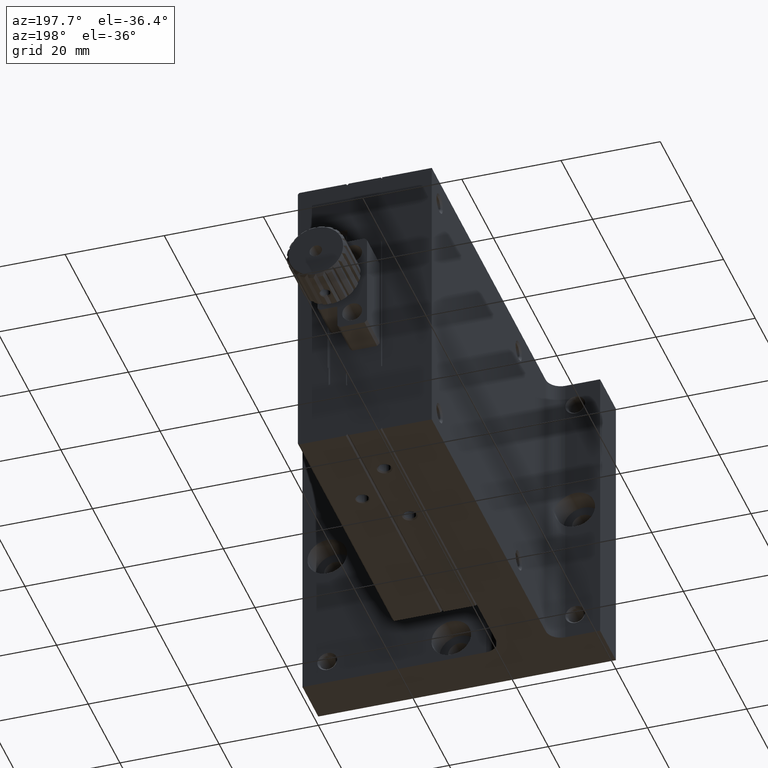
[diagram: clean part render]
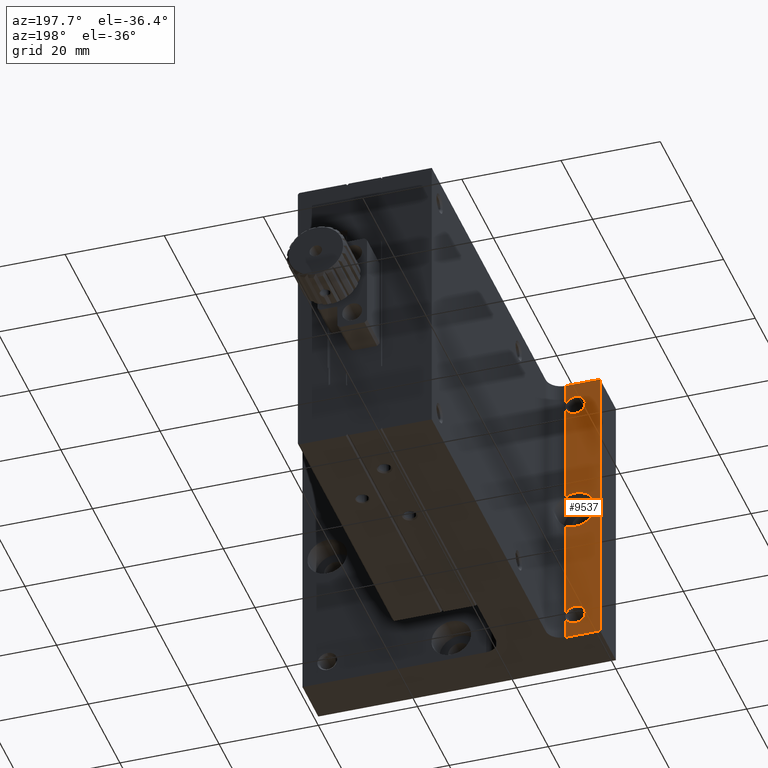
[diagram: same view with one face highlighted and labeled with its STEP entity id]
A machine part, auxiliary view. The second image highlights one B-rep face of the part: STEP entity #9537.
In plain terms, the highlighted planar face has unit normal (0, 1, 0).
Its self-contained STEP definition (entity closure, byte-faithful):
#198 = EDGE_CURVE ( 'NONE', #10607, #8321, #9887, .T. ) ;
#200 = FACE_BOUND ( 'NONE', #4552, .T. ) ;
#421 = DIRECTION ( 'NONE',  ( 0.000000000000000000, -0.000000000000000000, 1.000000000000000000 ) ) ;
#425 = DIRECTION ( 'NONE',  ( -0.000000000000000000, 0.000000000000000000, -1.000000000000000000 ) ) ;
#563 = ORIENTED_EDGE ( 'NONE', *, *, #4855, .T. ) ;
#577 = AXIS2_PLACEMENT_3D ( 'NONE', #10157, #6789, #9987 ) ;
#789 = CARTESIAN_POINT ( 'NONE',  ( 5.000000000000000000, 10.00000000000000000, -30.00000000000000000 ) ) ;
#977 = CARTESIAN_POINT ( 'NONE',  ( 5.000000000000000000, 9.999999999990905053, -2.999999999985902832 ) ) ;
#1234 = CARTESIAN_POINT ( 'NONE',  ( 7.000000000000000000, 10.00000000000000000, -60.00000000000000000 ) ) ;
#1295 = CARTESIAN_POINT ( 'NONE',  ( 6.999999999999988454, 9.999999999999994671, -33.46410161513775705 ) ) ;
#1332 = DIRECTION ( 'NONE',  ( -1.000000000000000000, -0.000000000000000000, 0.000000000000000000 ) ) ;
#1356 = VECTOR ( 'NONE', #3973, 1000.000000000000000 ) ;
#1560 = DIRECTION ( 'NONE',  ( 0.000000000000000000, 0.000000000000000000, -1.000000000000000000 ) ) ;
#1757 = LINE ( 'NONE', #6689, #3287 ) ;
#1937 = VERTEX_POINT ( 'NONE', #6447 ) ;
#2025 = AXIS2_PLACEMENT_3D ( 'NONE', #9100, #7409, #4968 ) ;
#2041 = ORIENTED_EDGE ( 'NONE', *, *, #4801, .T. ) ;
#2042 = PLANE ( 'NONE',  #8836 ) ;
#2052 = ORIENTED_EDGE ( 'NONE', *, *, #5712, .T. ) ;
#2260 = EDGE_CURVE ( 'NONE', #9905, #8321, #2913, .T. ) ;
#2378 = CIRCLE ( 'NONE', #2025, 2.000000000014097168 ) ;
#2467 = DIRECTION ( 'NONE',  ( -1.000000000000000000, -0.000000000000000000, 0.000000000000000000 ) ) ;
#2913 = LINE ( 'NONE', #3951, #3872 ) ;
#3059 = EDGE_CURVE ( 'NONE', #5705, #5705, #7338, .T. ) ;
#3287 = VECTOR ( 'NONE', #2467, 1000.000000000000000 ) ;
#3708 = ORIENTED_EDGE ( 'NONE', *, *, #8837, .T. ) ;
#3872 = VECTOR ( 'NONE', #1332, 1000.000000000000000 ) ;
#3951 = CARTESIAN_POINT ( 'NONE',  ( 23.00000000000000000, 10.00000000000000000, 0.000000000000000000 ) ) ;
#3973 = DIRECTION ( 'NONE',  ( -0.000000000000000000, 0.000000000000000000, -1.000000000000000000 ) ) ;
#4019 = DIRECTION ( 'NONE',  ( 0.000000000000000000, -1.000000000000000000, 0.000000000000000000 ) ) ;
#4116 = AXIS2_PLACEMENT_3D ( 'NONE', #789, #4019, #1560 ) ;
#4259 = EDGE_LOOP ( 'NONE', ( #10122 ) ) ;
#4378 = CARTESIAN_POINT ( 'NONE',  ( 6.999999999999995559, 10.00000000000000000, 0.000000000000000000 ) ) ;
#4466 = VECTOR ( 'NONE', #425, 1000.000000000000000 ) ;
#4552 = EDGE_LOOP ( 'NONE', ( #563 ) ) ;
#4669 = EDGE_CURVE ( 'NONE', #4724, #9720, #9439, .T. ) ;
#4724 = VERTEX_POINT ( 'NONE', #1295 ) ;
#4801 = EDGE_CURVE ( 'NONE', #1937, #4724, #8780, .T. ) ;
#4855 = EDGE_CURVE ( 'NONE', #8363, #8363, #2378, .T. ) ;
#4882 = LINE ( 'NONE', #7265, #1356 ) ;
#4968 = DIRECTION ( 'NONE',  ( 0.000000000000000000, 0.000000000000000000, 1.000000000000000000 ) ) ;
#4999 = CARTESIAN_POINT ( 'NONE',  ( 0.000000000000000000, 10.00000000000000000, -60.00000000000000000 ) ) ;
#5705 = VERTEX_POINT ( 'NONE', #9674 ) ;
#5712 = EDGE_CURVE ( 'NONE', #9905, #1937, #4882, .T. ) ;
#6009 = FACE_OUTER_BOUND ( 'NONE', #7103, .T. ) ;
#6337 = ORIENTED_EDGE ( 'NONE', *, *, #2260, .F. ) ;
#6372 = ORIENTED_EDGE ( 'NONE', *, *, #4669, .T. ) ;
#6387 = CARTESIAN_POINT ( 'NONE',  ( 6.999999999999995559, 10.00000000000000000, -60.00000000000000000 ) ) ;
#6447 = CARTESIAN_POINT ( 'NONE',  ( 6.999999999999995559, 10.00000000000000000, -26.53589838486224295 ) ) ;
#6689 = CARTESIAN_POINT ( 'NONE',  ( 7.000000000000000000, 10.00000000000000000, -60.00000000000000000 ) ) ;
#6789 = DIRECTION ( 'NONE',  ( 0.000000000000000000, -1.000000000000000000, -0.000000000000000000 ) ) ;
#6987 = FACE_BOUND ( 'NONE', #4259, .T. ) ;
#7103 = EDGE_LOOP ( 'NONE', ( #2052, #2041, #6372, #3708, #8503, #6337 ) ) ;
#7265 = CARTESIAN_POINT ( 'NONE',  ( 7.000000000000000000, 10.00000000000000000, -60.00000000000000000 ) ) ;
#7338 = CIRCLE ( 'NONE', #577, 2.000000000059572347 ) ;
#7409 = DIRECTION ( 'NONE',  ( 0.000000000000000000, -1.000000000000000000, -0.000000000000000000 ) ) ;
#7468 = VECTOR ( 'NONE', #7493, 1000.000000000000000 ) ;
#7493 = DIRECTION ( 'NONE',  ( 0.000000000000000000, -0.000000000000000000, 1.000000000000000000 ) ) ;
#7801 = CARTESIAN_POINT ( 'NONE',  ( 7.000000000000000000, 10.00000000000000000, -60.00000000000000000 ) ) ;
#7854 = DIRECTION ( 'NONE',  ( 0.000000000000000000, 1.000000000000000000, 0.000000000000000000 ) ) ;
#8321 = VERTEX_POINT ( 'NONE', #10077 ) ;
#8363 = VERTEX_POINT ( 'NONE', #977 ) ;
#8503 = ORIENTED_EDGE ( 'NONE', *, *, #198, .T. ) ;
#8780 = CIRCLE ( 'NONE', #4116, 4.000000000000003553 ) ;
#8836 = AXIS2_PLACEMENT_3D ( 'NONE', #1234, #7854, #421 ) ;
#8837 = EDGE_CURVE ( 'NONE', #9720, #10607, #1757, .T. ) ;
#8926 = CARTESIAN_POINT ( 'NONE',  ( 0.000000000000000000, 10.00000000000000000, -60.00000000000000000 ) ) ;
#9100 = CARTESIAN_POINT ( 'NONE',  ( 5.000000000000000000, 9.999999999990905053, -5.000000000000000000 ) ) ;
#9439 = LINE ( 'NONE', #7801, #4466 ) ;
#9537 = ADVANCED_FACE ( 'NONE', ( #200, #6987, #6009 ), #2042, .T. ) ;
#9674 = CARTESIAN_POINT ( 'NONE',  ( 5.000000000000009770, 9.999999999990905053, -52.99999999994042810 ) ) ;
#9720 = VERTEX_POINT ( 'NONE', #6387 ) ;
#9887 = LINE ( 'NONE', #4999, #7468 ) ;
#9905 = VERTEX_POINT ( 'NONE', #4378 ) ;
#9987 = DIRECTION ( 'NONE',  ( 0.000000000000000000, 0.000000000000000000, 1.000000000000000000 ) ) ;
#10077 = CARTESIAN_POINT ( 'NONE',  ( 0.000000000000000000, 10.00000000000000000, 0.000000000000000000 ) ) ;
#10122 = ORIENTED_EDGE ( 'NONE', *, *, #3059, .T. ) ;
#10157 = CARTESIAN_POINT ( 'NONE',  ( 5.000000000000009770, 9.999999999990905053, -55.00000000000000000 ) ) ;
#10607 = VERTEX_POINT ( 'NONE', #8926 ) ;